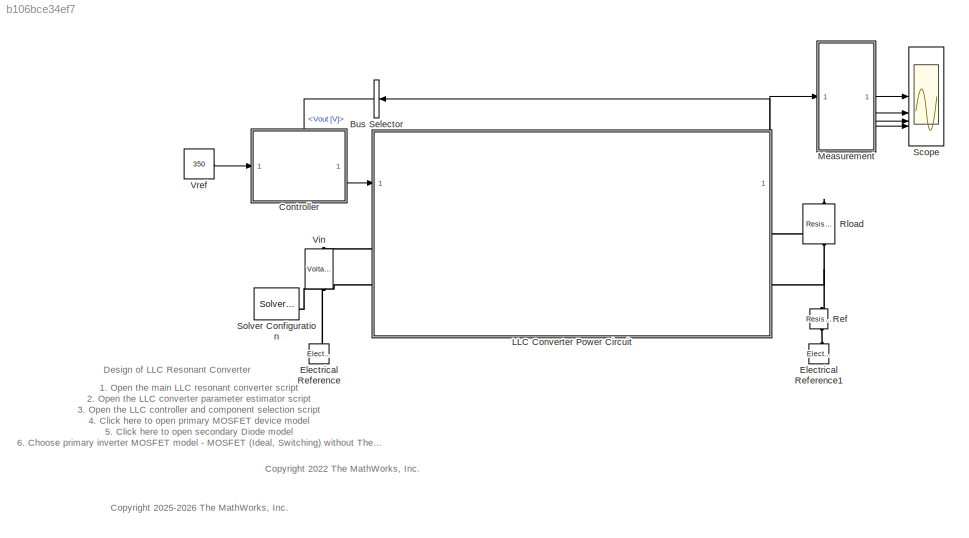
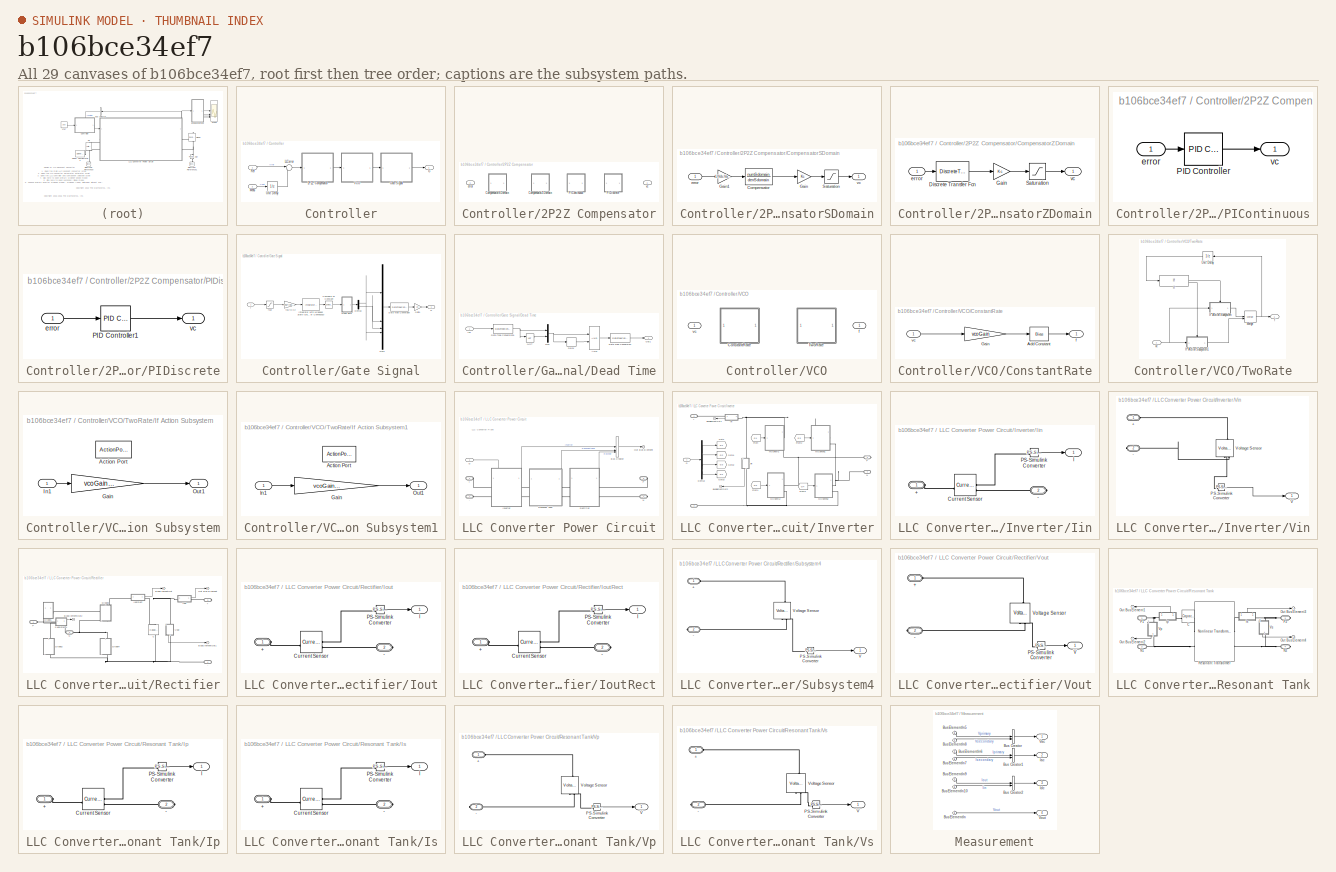
[diagram: thumbnail index - all 29 canvases of the model, root first then tree order]
MODEL slx_b106bce34ef7
KIND model
CONFIG AbsTol = 1e-3
CONFIG EnableMultiTasking = off
CONFIG FixedStep = Ts
CONFIG MaxStep = auto
CONFIG MinStep = auto
CONFIG PreLoadFcn = % Parameterize the model\n\nif ~exist('LLCDesign', 'var')\nLLCConverterDefaultInputParameters;\nend\n
CONFIG RelTol = 1e-3
CONFIG SampleTimeConstraint = Unconstrained
CONFIG SolverName = VariableStepAuto
CONFIG StartTime = 0.0
CONFIG StopTime = simulationTime
BLOCK [BusSelector] Bus Selector
  NameLocation = top
  OutputSignals = Rectifier.Vout [V]
BLOCK [SubSystem] Controller
  PortSchema = {"entries":[{"content":{"sides":[{"content":{"connectorIds":["In1"]},"type":"ConnectorPlacement.EquallySpacedRectSide","uuid":"84c754b2-b57a-4f64-aca2-bece432afc0f"},{"content":{"connectorIds":["Out1"],"side":"RIGHT"},"type":"ConnectorPlacement.EquallySpacedRectSide","uuid":"31c81acd-cffa-43b1-9c63-1fa24393f775"},{"content":{"connectorIds":["In2"],"side":"TOP"},"type":"ConnectorPlacement.EquallySp...<+245ch>
BLOCK [SubSystem] Controller/2P2Z Compensator
  LabelModeActiveChoice = SCompensator
  Variant = on
  VariantControlMode = label
BLOCK [SubSystem] Controller/2P2Z Compensator/CompensatorSDomain
  VariantControl = SCompensator
BLOCK [TransferFcn] Controller/2P2Z Compensator/CompensatorSDomain/Compensator
  Denominator = denSdomain
  Numerator = numSdomain
BLOCK [Gain] Controller/2P2Z Compensator/CompensatorSDomain/Gain
  Gain = Kc
BLOCK [Gain] Controller/2P2Z Compensator/CompensatorSDomain/Gain1
  Gain = 1/VdcValue
BLOCK [Saturate] Controller/2P2Z Compensator/CompensatorSDomain/Saturation
  LowerLimit = Fmin-1
  UpperLimit = Fmax-1
BLOCK [Inport] Controller/2P2Z Compensator/CompensatorSDomain/error
BLOCK [Outport] Controller/2P2Z Compensator/CompensatorSDomain/vc
BLOCK [SubSystem] Controller/2P2Z Compensator/CompensatorZDomain
  VariantControl = ZCompensator
BLOCK [DiscreteTransferFcn] Controller/2P2Z Compensator/CompensatorZDomain/Discrete Transfer Fcn
  CloseFcn = dspblkCoreblockFVToolHelper(gcbh,'close');
  CopyFcn = dspblkCoreblockFVToolHelper(gcbh,'copy');
  DeleteFcn = dspblkCoreblockFVToolHelper(gcbh,'close');
  Denominator = denZdomain
  InputPortMap = u0
  LoadFcn = dspblkCoreblockFVToolHelper(gcbh,'load');
  ModelCloseFcn = dspblkCoreblockFVToolHelper(gcbh,'close');
  Numerator = numZdomain
  PostSaveFcn = dspblkCoreblockFVToolHelper(gcbh,'postsave');
  PreSaveFcn = dspblkCoreblockFVToolHelper(gcbh,'presave');
BLOCK [Gain] Controller/2P2Z Compensator/CompensatorZDomain/Gain
  Gain = Kc
BLOCK [Saturate] Controller/2P2Z Compensator/CompensatorZDomain/Saturation
  LowerLimit = Fmin-1
  UpperLimit = Fmax-1
BLOCK [Inport] Controller/2P2Z Compensator/CompensatorZDomain/error
BLOCK [Outport] Controller/2P2Z Compensator/CompensatorZDomain/vc
BLOCK [SubSystem] Controller/2P2Z Compensator/PIContinuous
  VariantControl = PIContinuous
BLOCK [Reference] Controller/2P2Z Compensator/PIContinuous/PID Controller  REF=slpidlib/PID Controller
  LibrarySourceBlock = simulink/Continuous/PID Controller
  SourceBlock = slpidlib/PID Controller
  SourceType = PID 1dof
BLOCK [Inport] Controller/2P2Z Compensator/PIContinuous/error
BLOCK [Outport] Controller/2P2Z Compensator/PIContinuous/vc
BLOCK [SubSystem] Controller/2P2Z Compensator/PIDiscrete
  VariantControl = PIDiscrete
BLOCK [Reference] Controller/2P2Z Compensator/PIDiscrete/PID Controller1  REF=slpidlib/PID Controller
  LibrarySourceBlock = simulink/Continuous/PID Controller
  SourceBlock = slpidlib/PID Controller
  SourceType = PID 1dof
BLOCK [Inport] Controller/2P2Z Compensator/PIDiscrete/error
BLOCK [Outport] Controller/2P2Z Compensator/PIDiscrete/vc
BLOCK [Inport] Controller/2P2Z Compensator/error
BLOCK [Outport] Controller/2P2Z Compensator/vc
BLOCK [Outport] Controller/G
BLOCK [SubSystem] Controller/Gate Signal
BLOCK [Reference] Controller/Gate Signal/Compare To Constant  REF=simulink/Logic and Bit
Operations/Compare
To Constant
  SourceBlock = simulink/Logic and Bit\nOperations/Compare\nTo Constant
  SourceType = Compare To Constant
BLOCK [DataTypeConversion] Controller/Gate Signal/Data Type Conversion
  RndMeth = Floor
  SaturateOnIntegerOverflow = off
BLOCK [SubSystem] Controller/Gate Signal/Dead Time
BLOCK [Logic] Controller/Gate Signal/Dead Time/AND
  AllPortsSameDT = off
  IconShape = distinctive
  OutDataTypeStr = boolean
BLOCK [DataTypeConversion] Controller/Gate Signal/Dead Time/Data Type Conversion
  RndMeth = Floor
  SaturateOnIntegerOverflow = off
BLOCK [DataTypeConversion] Controller/Gate Signal/Dead Time/Data Type Conversion1
  RndMeth = Floor
  SaturateOnIntegerOverflow = off
BLOCK [Delay] Controller/Gate Signal/Dead Time/Delay
  DelayLength = 1
  InputPortMap = u0
  SampleTime = Tdead
BLOCK [Inport] Controller/Gate Signal/Dead Time/In1
BLOCK [Mux] Controller/Gate Signal/Dead Time/Mux
  DisplayOption = bar
  Inputs = 2
BLOCK [Logic] Controller/Gate Signal/Dead Time/NOT
  AllPortsSameDT = off
  IconShape = distinctive
  Operator = NOT
  OutDataTypeStr = boolean
BLOCK [Outport] Controller/Gate Signal/Dead Time/Out1
BLOCK [Demux] Controller/Gate Signal/Demux
  Outputs = 2
BLOCK [Outport] Controller/Gate Signal/G
BLOCK [Gain] Controller/Gate Signal/Gain1
  Gain = 10
BLOCK [Reference] Controller/Gate Signal/Integrator with Wrapped State (Discrete or Continuous)  REF=eeGeneralControl/Integrator with
Wrapped State
(Discrete or Continuous)
  LibrarySourceBlock = ee_sl_lib/General Control/Integrator with\nWrapped State\n(Discrete or Continuous)
  SourceBlock = eeGeneralControl/Integrator with\nWrapped State\n(Discrete or Continuous)
  SourceType = Integrator with Wrapped State (Discrete or Continuous)
BLOCK [Mux] Controller/Gate Signal/Mux1
  DisplayOption = bar
BLOCK [Inport] Controller/Gate Signal/f
BLOCK [Gain] Controller/Gate Signal/fpu to Hz
  Gain = resFreq*2*pi
BLOCK [Saturate] Controller/Gate Signal/fsat
  LowerLimit = Fmin
  UpperLimit = Fmax
BLOCK [Sum] Controller/LLCerror
  Inputs = |-+
  NameLocation = top
BLOCK [Inport] Controller/Meas
  Port = 2
BLOCK [Inport] Controller/Ref
BLOCK [UnitDelay] Controller/Unit Delay
  HasFrameUpgradeWarning = on
  SampleTime = -1
BLOCK [SubSystem] Controller/VCO
  LabelModeActiveChoice = Constant
  Variant = on
  VariantControlMode = label
BLOCK [SubSystem] Controller/VCO/ConstantRate
  VariantControl = Constant
BLOCK [Bias] Controller/VCO/ConstantRate/Add Constant
  Bias = 1
  SaturateOnIntegerOverflow = off
BLOCK [Gain] Controller/VCO/ConstantRate/Gain
  Gain = vcoGain
BLOCK [Outport] Controller/VCO/ConstantRate/f
BLOCK [Inport] Controller/VCO/ConstantRate/vc
BLOCK [SubSystem] Controller/VCO/TwoRate
  VariantControl = TwoRate
BLOCK [If] Controller/VCO/TwoRate/If
  IfExpression = u1 > 1
BLOCK [SubSystem] Controller/VCO/TwoRate/If Action Subsystem
  TreatAsAtomicUnit = on
BLOCK [ActionPort] Controller/VCO/TwoRate/If Action Subsystem/Action Port
  ActionPortLabel = if(u1 > 1)
BLOCK [Gain] Controller/VCO/TwoRate/If Action Subsystem/Gain
  Gain = vcoGainVec(2)
BLOCK [Inport] Controller/VCO/TwoRate/If Action Subsystem/In1
BLOCK [Outport] Controller/VCO/TwoRate/If Action Subsystem/Out1
BLOCK [SubSystem] Controller/VCO/TwoRate/If Action Subsystem1
  TreatAsAtomicUnit = on
BLOCK [ActionPort] Controller/VCO/TwoRate/If Action Subsystem1/Action Port
  ActionPortLabel = else
BLOCK [Gain] Controller/VCO/TwoRate/If Action Subsystem1/Gain
  Gain = vcoGainVec(1)
BLOCK [Inport] Controller/VCO/TwoRate/If Action Subsystem1/In1
BLOCK [Outport] Controller/VCO/TwoRate/If Action Subsystem1/Out1
BLOCK [Merge] Controller/VCO/TwoRate/Merge
BLOCK [UnitDelay] Controller/VCO/TwoRate/Unit Delay
  HasFrameUpgradeWarning = on
  NameLocation = top
  SampleTime = -1
BLOCK [Outport] Controller/VCO/TwoRate/f
BLOCK [Inport] Controller/VCO/TwoRate/vc
BLOCK [Outport] Controller/VCO/f
BLOCK [Inport] Controller/VCO/vc
BLOCK [Reference] Electrical Reference  REF=fl_lib/Electrical/Electrical Elements/Electrical Reference
  NameLocation = right
  SourceBlock = fl_lib/Electrical/Electrical Elements/Electrical Reference
  SourceType = Electrical Reference
BLOCK [Reference] Electrical Reference1  REF=fl_lib/Electrical/Electrical Elements/Electrical Reference
  NameLocation = right
  SourceBlock = fl_lib/Electrical/Electrical Elements/Electrical Reference
  SourceType = Electrical Reference
BLOCK [SubSystem] LLC Converter Power Circuit
  PortSchema = {"entries":[{"content":{"sides":[{"content":{"connectorIds":["In1","LConn1","LConn2"]},"type":"ConnectorPlacement.EquallySpacedRectSide","uuid":"9d7037c5-8362-4639-a590-88c7a87a4fbd"},{"content":{"connectorIds":["RConn1","RConn2"],"side":"RIGHT"},"type":"ConnectorPlacement.EquallySpacedRectSide","uuid":"942947c3-387e-46dc-803e-f2f213fbe88c"},{"content":{"connectorIds":["Out1"],"side":"TOP"},"type"...<+275ch>
  VariantControl = fullConverter
BLOCK [PMIOPort] LLC Converter Power Circuit/+
  Side = Left
BLOCK [PMIOPort] LLC Converter Power Circuit/-
  Port = 2
  Side = Left
BLOCK [BusCreator] LLC Converter Power Circuit/Bus Creator
  DisplayOption = bar
  InheritFromInputs = on
  Inputs = 3
BLOCK [Inport] LLC Converter Power Circuit/G
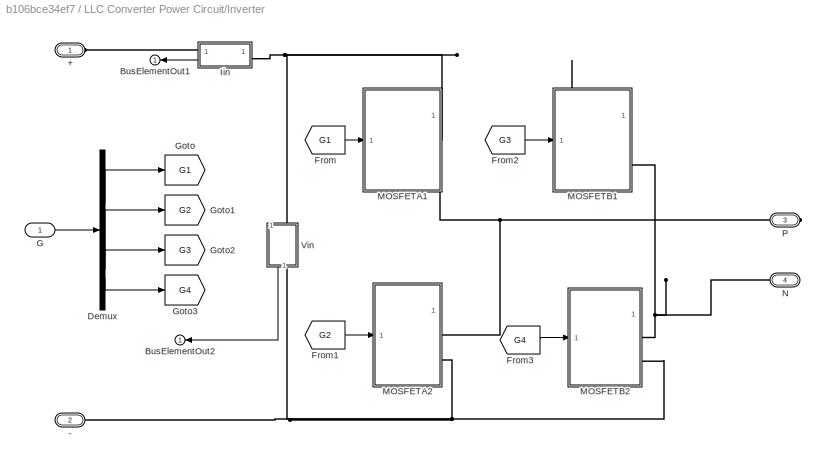
BLOCK [SubSystem] LLC Converter Power Circuit/Inverter
  PortSchema = {"entries":[{"content":{"sides":[{"content":{"connectorIds":["LConn1","LConn2"]},"type":"ConnectorPlacement.EquallySpacedRectSide","uuid":"5f98eff0-54e4-47a8-aeeb-0279cba14f26"},{"content":{"connectorIds":["RConn1","RConn2"],"side":"RIGHT"},"type":"ConnectorPlacement.EquallySpacedRectSide","uuid":"71acbbb6-1fc8-426c-b389-5d494eb18bfd"},{"content":{"connectorIds":["In1","Out1"],"side":"TOP"},"type"...<+275ch>
BLOCK [PMIOPort] LLC Converter Power Circuit/Inverter/+
  NameLocation = top
  Side = Left
BLOCK [PMIOPort] LLC Converter Power Circuit/Inverter/-
  NameLocation = top
  Port = 2
  Side = Left
BLOCK [Outport] LLC Converter Power Circuit/Inverter/BusElementOut1
  NameLocation = top
BLOCK [Outport] LLC Converter Power Circuit/Inverter/BusElementOut2
  NameLocation = top
BLOCK [Demux] LLC Converter Power Circuit/Inverter/Demux
BLOCK [From] LLC Converter Power Circuit/Inverter/From
  GotoTag = G1
BLOCK [From] LLC Converter Power Circuit/Inverter/From1
  GotoTag = G2
BLOCK [From] LLC Converter Power Circuit/Inverter/From2
  GotoTag = G3
BLOCK [From] LLC Converter Power Circuit/Inverter/From3
  GotoTag = G4
BLOCK [Inport] LLC Converter Power Circuit/Inverter/G
BLOCK [Goto] LLC Converter Power Circuit/Inverter/Goto
  GotoTag = G1
BLOCK [Goto] LLC Converter Power Circuit/Inverter/Goto1
  GotoTag = G2
BLOCK [Goto] LLC Converter Power Circuit/Inverter/Goto2
  GotoTag = G3
BLOCK [Goto] LLC Converter Power Circuit/Inverter/Goto3
  GotoTag = G4
BLOCK [SubSystem] LLC Converter Power Circuit/Inverter/Iin
  PortSchema = {"entries":[{"content":{"sides":[{"content":{"connectorIds":["LConn1","Out1"]},"type":"ConnectorPlacement.EquallySpacedRectSide","uuid":"e749c2ff-fd60-426f-a769-b61a7dfe80d2"},{"content":{"connectorIds":["RConn1"],"side":"RIGHT"},"type":"ConnectorPlacement.EquallySpacedRectSide","uuid":"f3bb02bd-f8d2-4326-b68c-6f969fa4ac22"},{"content":{"side":"TOP"},"type":"ConnectorPlacement.EquallySpacedRectSid...<+234ch>
BLOCK [PMIOPort] LLC Converter Power Circuit/Inverter/Iin/+
  Side = Left
BLOCK [PMIOPort] LLC Converter Power Circuit/Inverter/Iin/-
  Port = 2
  Side = Right
BLOCK [Reference] LLC Converter Power Circuit/Inverter/Iin/Current Sensor  REF=fl_lib/Electrical/Electrical Sensors/Current Sensor
  SourceBlock = fl_lib/Electrical/Electrical Sensors/Current Sensor
  SourceType = Current Sensor
BLOCK [Outport] LLC Converter Power Circuit/Inverter/Iin/I
BLOCK [Reference] LLC Converter Power Circuit/Inverter/Iin/PS-Simulink Converter  REF=nesl_utility/PS-Simulink
Converter
  SourceBlock = nesl_utility/PS-Simulink\nConverter
  SourceType = PS-Simulink\nConverter
BLOCK [SubSystem] LLC Converter Power Circuit/Inverter/MOSFETA1
  ReferencedSubsystem = LLCModelIdealMOSFETWithoutThermal
BLOCK [SubSystem] LLC Converter Power Circuit/Inverter/MOSFETA2
  ReferencedSubsystem = LLCModelIdealMOSFETWithoutThermal
BLOCK [SubSystem] LLC Converter Power Circuit/Inverter/MOSFETB1
  ReferencedSubsystem = LLCModelIdealMOSFETWithoutThermal
BLOCK [SubSystem] LLC Converter Power Circuit/Inverter/MOSFETB2
  ReferencedSubsystem = LLCModelIdealMOSFETWithoutThermal
BLOCK [PMIOPort] LLC Converter Power Circuit/Inverter/N
  Port = 4
  Side = Right
BLOCK [PMIOPort] LLC Converter Power Circuit/Inverter/P
  Port = 3
  Side = Right
BLOCK [SubSystem] LLC Converter Power Circuit/Inverter/Vin
  NameLocation = left
BLOCK [PMIOPort] LLC Converter Power Circuit/Inverter/Vin/+
  Side = Left
BLOCK [PMIOPort] LLC Converter Power Circuit/Inverter/Vin/-
  Port = 2
  Side = Right
BLOCK [Reference] LLC Converter Power Circuit/Inverter/Vin/PS-Simulink Converter  REF=nesl_utility/PS-Simulink
Converter
  SourceBlock = nesl_utility/PS-Simulink\nConverter
  SourceType = PS-Simulink\nConverter
BLOCK [Outport] LLC Converter Power Circuit/Inverter/Vin/V
BLOCK [Reference] LLC Converter Power Circuit/Inverter/Vin/Voltage Sensor  REF=fl_lib/Electrical/Electrical Sensors/Voltage Sensor
  NameLocation = right
  SourceBlock = fl_lib/Electrical/Electrical Sensors/Voltage Sensor
  SourceType = Voltage Sensor
BLOCK [PMIOPort] LLC Converter Power Circuit/N
  Port = 4
  Side = Right
BLOCK [Outport] LLC Converter Power Circuit/Out Bus Element
BLOCK [PMIOPort] LLC Converter Power Circuit/P
  Port = 3
  Side = Right
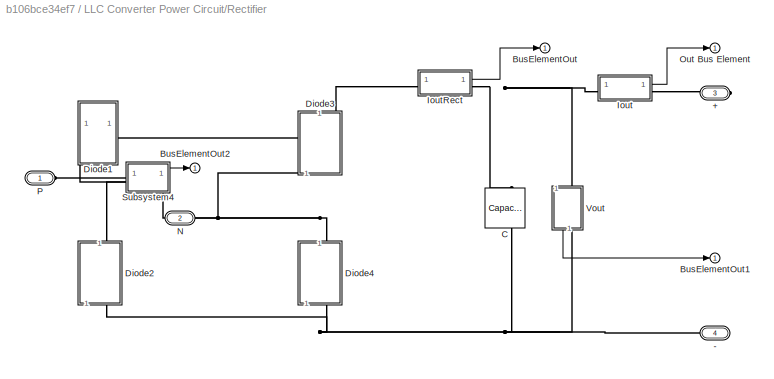
BLOCK [SubSystem] LLC Converter Power Circuit/Rectifier
  PortSchema = {"entries":[{"content":{"sides":[{"content":{"connectorIds":["LConn1","LConn2"]},"type":"ConnectorPlacement.EquallySpacedRectSide","uuid":"4786b3cc-2245-4c72-a50b-9c63e4ad3d8a"},{"content":{"connectorIds":["RConn1","RConn2"],"side":"RIGHT"},"type":"ConnectorPlacement.EquallySpacedRectSide","uuid":"250a01d0-bf95-4e01-bf69-d866bcf3b7bd"},{"content":{"connectorIds":["Out1"],"side":"TOP"},"type":"Conn...<+269ch>
BLOCK [PMIOPort] LLC Converter Power Circuit/Rectifier/+
  Port = 3
  Side = Right
BLOCK [PMIOPort] LLC Converter Power Circuit/Rectifier/-
  Port = 4
  Side = Right
BLOCK [Outport] LLC Converter Power Circuit/Rectifier/BusElementOut
BLOCK [Outport] LLC Converter Power Circuit/Rectifier/BusElementOut1
BLOCK [Outport] LLC Converter Power Circuit/Rectifier/BusElementOut2
BLOCK [Reference] LLC Converter Power Circuit/Rectifier/C  REF=fl_lib/Electrical/Electrical Elements/Capacitor
  NameLocation = left
  SourceBlock = fl_lib/Electrical/Electrical Elements/Capacitor
  SourceType = Capacitor
BLOCK [SubSystem] LLC Converter Power Circuit/Rectifier/Diode1
  NameLocation = top
  PortSchema = {"entries":[{"content":{"sides":[{"content":{},"type":"ConnectorPlacement.EquallySpacedRectSide","uuid":"8b053fdc-57c3-42d0-a795-f49711decca4"},{"content":{"side":"RIGHT"},"type":"ConnectorPlacement.EquallySpacedRectSide","uuid":"4b631d3b-8cca-4ce3-82a2-65a4f492aa8e"},{"content":{"connectorIds":["LConn1"],"side":"TOP"},"type":"ConnectorPlacement.EquallySpacedRectSide","uuid":"517b7f49-533e-4d6c-86...<+354ch>
  ReferencedSubsystem = LLCModelBasicDiode
BLOCK [SubSystem] LLC Converter Power Circuit/Rectifier/Diode2
  NameLocation = right
  ReferencedSubsystem = LLCModelBasicDiode
BLOCK [SubSystem] LLC Converter Power Circuit/Rectifier/Diode3
  NameLocation = right
  ReferencedSubsystem = LLCModelBasicDiode
BLOCK [SubSystem] LLC Converter Power Circuit/Rectifier/Diode4
  NameLocation = right
  ReferencedSubsystem = LLCModelBasicDiode
BLOCK [SubSystem] LLC Converter Power Circuit/Rectifier/Iout
BLOCK [PMIOPort] LLC Converter Power Circuit/Rectifier/Iout/+
  Side = Left
BLOCK [PMIOPort] LLC Converter Power Circuit/Rectifier/Iout/-
  Port = 2
  Side = Right
BLOCK [Reference] LLC Converter Power Circuit/Rectifier/Iout/Current Sensor  REF=fl_lib/Electrical/Electrical Sensors/Current Sensor
  SourceBlock = fl_lib/Electrical/Electrical Sensors/Current Sensor
  SourceType = Current Sensor
BLOCK [Outport] LLC Converter Power Circuit/Rectifier/Iout/I
BLOCK [Reference] LLC Converter Power Circuit/Rectifier/Iout/PS-Simulink Converter  REF=nesl_utility/PS-Simulink
Converter
  SourceBlock = nesl_utility/PS-Simulink\nConverter
  SourceType = PS-Simulink\nConverter
BLOCK [SubSystem] LLC Converter Power Circuit/Rectifier/IoutRect
BLOCK [PMIOPort] LLC Converter Power Circuit/Rectifier/IoutRect/+
  Side = Left
BLOCK [PMIOPort] LLC Converter Power Circuit/Rectifier/IoutRect/-
  Port = 2
  Side = Right
BLOCK [Reference] LLC Converter Power Circuit/Rectifier/IoutRect/Current Sensor  REF=fl_lib/Electrical/Electrical Sensors/Current Sensor
  SourceBlock = fl_lib/Electrical/Electrical Sensors/Current Sensor
  SourceType = Current Sensor
BLOCK [Outport] LLC Converter Power Circuit/Rectifier/IoutRect/I
BLOCK [Reference] LLC Converter Power Circuit/Rectifier/IoutRect/PS-Simulink Converter  REF=nesl_utility/PS-Simulink
Converter
  SourceBlock = nesl_utility/PS-Simulink\nConverter
  SourceType = PS-Simulink\nConverter
BLOCK [PMIOPort] LLC Converter Power Circuit/Rectifier/N
  NameLocation = top
  Port = 2
  Side = Left
BLOCK [Outport] LLC Converter Power Circuit/Rectifier/Out Bus Element
BLOCK [PMIOPort] LLC Converter Power Circuit/Rectifier/P
  NameLocation = top
  Side = Left
BLOCK [SubSystem] LLC Converter Power Circuit/Rectifier/Subsystem4
  PortSchema = {"entries":[{"content":{"sides":[{"content":{"connectorIds":["LConn1"]},"type":"ConnectorPlacement.EquallySpacedRectSide","uuid":"e749c2ff-fd60-426f-a769-b61a7dfe80d2"},{"content":{"connectorIds":["RConn1","Out1"],"side":"RIGHT"},"type":"ConnectorPlacement.EquallySpacedRectSide","uuid":"f3bb02bd-f8d2-4326-b68c-6f969fa4ac22"},{"content":{"side":"TOP"},"type":"ConnectorPlacement.EquallySpacedRectSid...<+234ch>  <repeated x3 — deduplicated; at blocks: Subsystem4, Vout, Is>
BLOCK [PMIOPort] LLC Converter Power Circuit/Rectifier/Subsystem4/+
  Side = Left
BLOCK [PMIOPort] LLC Converter Power Circuit/Rectifier/Subsystem4/-
  Port = 2
  Side = Right
BLOCK [Reference] LLC Converter Power Circuit/Rectifier/Subsystem4/PS-Simulink Converter  REF=nesl_utility/PS-Simulink
Converter
  SourceBlock = nesl_utility/PS-Simulink\nConverter
  SourceType = PS-Simulink\nConverter
BLOCK [Outport] LLC Converter Power Circuit/Rectifier/Subsystem4/V
BLOCK [Reference] LLC Converter Power Circuit/Rectifier/Subsystem4/Voltage Sensor  REF=fl_lib/Electrical/Electrical Sensors/Voltage Sensor
  NameLocation = right
  SourceBlock = fl_lib/Electrical/Electrical Sensors/Voltage Sensor
  SourceType = Voltage Sensor
BLOCK [SubSystem] LLC Converter Power Circuit/Rectifier/Vout
  NameLocation = left
BLOCK [PMIOPort] LLC Converter Power Circuit/Rectifier/Vout/+
  Side = Left
BLOCK [PMIOPort] LLC Converter Power Circuit/Rectifier/Vout/-
  Port = 2
  Side = Right
BLOCK [Reference] LLC Converter Power Circuit/Rectifier/Vout/PS-Simulink Converter  REF=nesl_utility/PS-Simulink
Converter
  SourceBlock = nesl_utility/PS-Simulink\nConverter
  SourceType = PS-Simulink\nConverter
BLOCK [Outport] LLC Converter Power Circuit/Rectifier/Vout/V
BLOCK [Reference] LLC Converter Power Circuit/Rectifier/Vout/Voltage Sensor  REF=fl_lib/Electrical/Electrical Sensors/Voltage Sensor
  NameLocation = right
  SourceBlock = fl_lib/Electrical/Electrical Sensors/Voltage Sensor
  SourceType = Voltage Sensor
BLOCK [SubSystem] LLC Converter Power Circuit/Resonant Tank
  PortSchema = {"entries":[{"content":{"sides":[{"content":{"connectorIds":["LConn1","LConn2"]},"type":"ConnectorPlacement.EquallySpacedRectSide","uuid":"d505f362-3b8e-4dee-9b5b-731d75550efb"},{"content":{"connectorIds":["RConn1","RConn2"],"side":"RIGHT"},"type":"ConnectorPlacement.EquallySpacedRectSide","uuid":"66ab4b84-9b7a-404b-b3f6-3ac1c371ea42"},{"content":{"connectorIds":["Out1"],"side":"TOP"},"type":"Conn...<+269ch>
BLOCK [Reference] LLC Converter Power Circuit/Resonant Tank/C  REF=fl_lib/Electrical/Electrical Elements/Capacitor
  SourceBlock = fl_lib/Electrical/Electrical Elements/Capacitor
  SourceType = Capacitor
BLOCK [SubSystem] LLC Converter Power Circuit/Resonant Tank/Ip
  PortSchema = {"entries":[{"content":{"sides":[{"content":{"connectorIds":["Out1","LConn1"]},"type":"ConnectorPlacement.EquallySpacedRectSide","uuid":"e749c2ff-fd60-426f-a769-b61a7dfe80d2"},{"content":{"connectorIds":["RConn1"],"side":"RIGHT"},"type":"ConnectorPlacement.EquallySpacedRectSide","uuid":"f3bb02bd-f8d2-4326-b68c-6f969fa4ac22"},{"content":{"side":"TOP"},"type":"ConnectorPlacement.EquallySpacedRectSid...<+234ch>
BLOCK [PMIOPort] LLC Converter Power Circuit/Resonant Tank/Ip/+
  Side = Left
BLOCK [PMIOPort] LLC Converter Power Circuit/Resonant Tank/Ip/-
  Port = 2
  Side = Right
BLOCK [Reference] LLC Converter Power Circuit/Resonant Tank/Ip/Current Sensor  REF=fl_lib/Electrical/Electrical Sensors/Current Sensor
  SourceBlock = fl_lib/Electrical/Electrical Sensors/Current Sensor
  SourceType = Current Sensor
BLOCK [Outport] LLC Converter Power Circuit/Resonant Tank/Ip/I
BLOCK [Reference] LLC Converter Power Circuit/Resonant Tank/Ip/PS-Simulink Converter  REF=nesl_utility/PS-Simulink
Converter
  SourceBlock = nesl_utility/PS-Simulink\nConverter
  SourceType = PS-Simulink\nConverter
BLOCK [SubSystem] LLC Converter Power Circuit/Resonant Tank/Is
BLOCK [PMIOPort] LLC Converter Power Circuit/Resonant Tank/Is/+
  Side = Left
BLOCK [PMIOPort] LLC Converter Power Circuit/Resonant Tank/Is/-
  Port = 2
  Side = Right
BLOCK [Reference] LLC Converter Power Circuit/Resonant Tank/Is/Current Sensor  REF=fl_lib/Electrical/Electrical Sensors/Current Sensor
  SourceBlock = fl_lib/Electrical/Electrical Sensors/Current Sensor
  SourceType = Current Sensor
BLOCK [Outport] LLC Converter Power Circuit/Resonant Tank/Is/I
BLOCK [Reference] LLC Converter Power Circuit/Resonant Tank/Is/PS-Simulink Converter  REF=nesl_utility/PS-Simulink
Converter
  SourceBlock = nesl_utility/PS-Simulink\nConverter
  SourceType = PS-Simulink\nConverter
BLOCK [PMIOPort] LLC Converter Power Circuit/Resonant Tank/N1
  Port = 2
  Side = Left
BLOCK [PMIOPort] LLC Converter Power Circuit/Resonant Tank/N2
  Port = 4
  Side = Right
BLOCK [Outport] LLC Converter Power Circuit/Resonant Tank/Out Bus Element1
  NameLocation = top
BLOCK [Outport] LLC Converter Power Circuit/Resonant Tank/Out Bus Element2
  NameLocation = top
BLOCK [Outport] LLC Converter Power Circuit/Resonant Tank/Out Bus Element3
BLOCK [Outport] LLC Converter Power Circuit/Resonant Tank/Out Bus Element4
BLOCK [PMIOPort] LLC Converter Power Circuit/Resonant Tank/P1
  Side = Left
BLOCK [PMIOPort] LLC Converter Power Circuit/Resonant Tank/P2
  Port = 3
  Side = Right
BLOCK [Reference] LLC Converter Power Circuit/Resonant Tank/Resonant Transformer  REF=ee_lib/Passive/Transformers/Nonlinear
Transformer
  SourceBlock = ee_lib/Passive/Transformers/Nonlinear\nTransformer
  SourceType = Nonlinear\nTransformer
BLOCK [SubSystem] LLC Converter Power Circuit/Resonant Tank/Vp
  NameLocation = left
BLOCK [PMIOPort] LLC Converter Power Circuit/Resonant Tank/Vp/+
  Side = Left
BLOCK [PMIOPort] LLC Converter Power Circuit/Resonant Tank/Vp/-
  Port = 2
  Side = Right
BLOCK [Reference] LLC Converter Power Circuit/Resonant Tank/Vp/PS-Simulink Converter  REF=nesl_utility/PS-Simulink
Converter
  SourceBlock = nesl_utility/PS-Simulink\nConverter
  SourceType = PS-Simulink\nConverter
BLOCK [Outport] LLC Converter Power Circuit/Resonant Tank/Vp/V
BLOCK [Reference] LLC Converter Power Circuit/Resonant Tank/Vp/Voltage Sensor  REF=fl_lib/Electrical/Electrical Sensors/Voltage Sensor
  NameLocation = right
  SourceBlock = fl_lib/Electrical/Electrical Sensors/Voltage Sensor
  SourceType = Voltage Sensor
BLOCK [SubSystem] LLC Converter Power Circuit/Resonant Tank/Vs
  NameLocation = right
BLOCK [PMIOPort] LLC Converter Power Circuit/Resonant Tank/Vs/+
  Side = Left
BLOCK [PMIOPort] LLC Converter Power Circuit/Resonant Tank/Vs/-
  Port = 2
  Side = Right
BLOCK [Reference] LLC Converter Power Circuit/Resonant Tank/Vs/PS-Simulink Converter  REF=nesl_utility/PS-Simulink
Converter
  SourceBlock = nesl_utility/PS-Simulink\nConverter
  SourceType = PS-Simulink\nConverter
BLOCK [Outport] LLC Converter Power Circuit/Resonant Tank/Vs/V
BLOCK [Reference] LLC Converter Power Circuit/Resonant Tank/Vs/Voltage Sensor  REF=fl_lib/Electrical/Electrical Sensors/Voltage Sensor
  NameLocation = right
  SourceBlock = fl_lib/Electrical/Electrical Sensors/Voltage Sensor
  SourceType = Voltage Sensor
BLOCK [SubSystem] Measurement
BLOCK [BusCreator] Measurement/Bus Creator
  DisplayOption = bar
  InheritFromInputs = on
  Inputs = 2
BLOCK [BusCreator] Measurement/Bus Creator1
  DisplayOption = bar
  InheritFromInputs = on
  Inputs = 2
BLOCK [BusCreator] Measurement/Bus Creator2
  DisplayOption = bar
  InheritFromInputs = on
  Inputs = 2
BLOCK [Inport] Measurement/BusElementIn
BLOCK [Inport] Measurement/BusElementIn10
BLOCK [Inport] Measurement/BusElementIn5
BLOCK [Inport] Measurement/BusElementIn6
BLOCK [Inport] Measurement/BusElementIn7
BLOCK [Inport] Measurement/BusElementIn8
BLOCK [Inport] Measurement/BusElementIn9
BLOCK [Outport] Measurement/Iac
  Port = 2
BLOCK [Outport] Measurement/Idc
  Port = 3
BLOCK [Outport] Measurement/Vac
BLOCK [Outport] Measurement/Vout
  Port = 4
BLOCK [Reference] Ref  REF=fl_lib/Electrical/Electrical Elements/Resistor
  NameLocation = right
  SourceBlock = fl_lib/Electrical/Electrical Elements/Resistor
  SourceType = Resistor
BLOCK [Reference] Rload  REF=fl_lib/Electrical/Electrical Elements/Resistor
  NameLocation = right
  SourceBlock = fl_lib/Electrical/Electrical Elements/Resistor
  SourceType = Resistor
BLOCK [Scope] Scope
  ActiveDisplayYMaximum = 476.50662753119536
  ActiveDisplayYMinimum = -476.50642638958004
  DataLoggingVariableName = ScopeData1
  Floating = off
  GraphicalSettings = {"Style":{"BackgroundColor":[0.12941176470588237,0.12941176470588237,0.12941176470588237],"AxesColor":[0.07058823529411765,0.07058823529411765,0.07058823529411765],"LabelsColor":[0.8509803921568627,0.8509803921568627,0.8509803921568627],"PreserveColors":false,"Visible":[true,true,true,true,true,true,true],"LineStyle":["-","-","-","-","-","-","-"],"LineWidth":[1.5,1.5,1.5,1.5,1.5,1.5,1.5],"BarWidth...<+3886ch>
  LayoutDimensionsString = [2 2]
  MultipleDisplayCache = [{"MaxYLimMag":476.50662753119536,"MaxYLimReal":476.50662753119536,"MinYLimMag":0,"MinYLimReal":-476.50642638958004,"PlotAsMagnitudePhase":false,"ShowGrid":true,"ShowLegend":true,"Title":"Resonant Tank Voltages","YLabel":""},{"MaxYLimMag":60.551065160895185,"MaxYLimReal":60.551065160895185,"MinYLimMag":0,"MinYLimReal":-48.3394964532292,"PlotAsMagnitudePhase":false,"ShowGrid":true,"ShowLegend":true...<+508ch>
  NumInputPorts = 4
  ScopeFrameLocation = window
  ShowLegend = on
  Title = Resonant Tank Voltages
  WasSavedAsWebScope = on
  WindowPosition = [319.000000,192.000000,746.000000,571.000000,]
BLOCK [Reference] Solver Configuration  REF=nesl_utility/Solver
Configuration
  SourceBlock = nesl_utility/Solver\nConfiguration
  SourceType = Solver\nConfiguration
BLOCK [Reference] Vin  REF=ee_lib/Sources/Voltage Source
  NameLocation = right
  SourceBlock = ee_lib/Sources/Voltage Source
  SourceType = Voltage Source
BLOCK [Constant] Vref
  Value = 350
ANNOTATION (root): 1. Open the main LLC resonant converter script 2. Open the LLC converter parameter estimator script 3. Open the LLC controller and component selection script 4. Click here to open primary MOSFET device model 5. Click here to open secondary Diode model 6. Choose primary inverter MOSFET model - MOSFET (Ideal, Switching) without Thermal , MOSFET (Ideal, Switching) with Thermal 7. Choose secondary dio...<+102ch>
ANNOTATION (root): Design of LLC Resonant Converter
ANNOTATION (root): <copyright redacted>
ANNOTATION (root): <copyright redacted>
ANNOTATION LLC Converter Power Circuit: LLC Converter Plant
LINE Bus Selector:1 -> Controller:2
LINE Controller/2P2Z Compensator/CompensatorSDomain/Compensator:1 -> Controller/2P2Z Compensator/CompensatorSDomain/Gain:1
LINE Controller/2P2Z Compensator/CompensatorSDomain/Gain1:1 -> Controller/2P2Z Compensator/CompensatorSDomain/Compensator:1
LINE Controller/2P2Z Compensator/CompensatorSDomain/Gain:1 -> Controller/2P2Z Compensator/CompensatorSDomain/Saturation:1
LINE Controller/2P2Z Compensator/CompensatorSDomain/Saturation:1 -> Controller/2P2Z Compensator/CompensatorSDomain/vc:1
LINE Controller/2P2Z Compensator/CompensatorSDomain/error:1 -> Controller/2P2Z Compensator/CompensatorSDomain/Gain1:1
LINE Controller/2P2Z Compensator/CompensatorZDomain/Discrete Transfer Fcn:1 -> Controller/2P2Z Compensator/CompensatorZDomain/Gain:1
LINE Controller/2P2Z Compensator/CompensatorZDomain/Gain:1 -> Controller/2P2Z Compensator/CompensatorZDomain/Saturation:1
LINE Controller/2P2Z Compensator/CompensatorZDomain/Saturation:1 -> Controller/2P2Z Compensator/CompensatorZDomain/vc:1
LINE Controller/2P2Z Compensator/CompensatorZDomain/error:1 -> Controller/2P2Z Compensator/CompensatorZDomain/Discrete Transfer Fcn:1
LINE Controller/2P2Z Compensator/PIContinuous/PID Controller:1 -> Controller/2P2Z Compensator/PIContinuous/vc:1
LINE Controller/2P2Z Compensator/PIContinuous/error:1 -> Controller/2P2Z Compensator/PIContinuous/PID Controller:1
LINE Controller/2P2Z Compensator/PIDiscrete/PID Controller1:1 -> Controller/2P2Z Compensator/PIDiscrete/vc:1
LINE Controller/2P2Z Compensator/PIDiscrete/error:1 -> Controller/2P2Z Compensator/PIDiscrete/PID Controller1:1
LINE Controller/2P2Z Compensator:1 -> Controller/VCO:1
LINE Controller/Gate Signal/Compare To Constant:1 -> Controller/Gate Signal/Dead Time:1
LINE Controller/Gate Signal/Data Type Conversion:1 -> Controller/Gate Signal/Gain1:1
LINE Controller/Gate Signal/Dead Time/AND:1 -> Controller/Gate Signal/Dead Time/Data Type Conversion:1
NET Controller/Gate Signal/Dead Time/Data Type Conversion1:1 -> Controller/Gate Signal/Dead Time/Mux:1, Controller/Gate Signal/Dead Time/NOT:1
LINE Controller/Gate Signal/Dead Time/Data Type Conversion:1 -> Controller/Gate Signal/Dead Time/Out1:1
LINE Controller/Gate Signal/Dead Time/Delay:1 -> Controller/Gate Signal/Dead Time/AND:2
LINE Controller/Gate Signal/Dead Time/In1:1 -> Controller/Gate Signal/Dead Time/Data Type Conversion1:1
NET Controller/Gate Signal/Dead Time/Mux:1 -> Controller/Gate Signal/Dead Time/AND:1, Controller/Gate Signal/Dead Time/Delay:1
LINE Controller/Gate Signal/Dead Time/NOT:1 -> Controller/Gate Signal/Dead Time/Mux:2
LINE Controller/Gate Signal/Dead Time:1 -> Controller/Gate Signal/Demux:1
NET Controller/Gate Signal/Demux:1 -> Controller/Gate Signal/Mux1:1, Controller/Gate Signal/Mux1:4
NET Controller/Gate Signal/Demux:2 -> Controller/Gate Signal/Mux1:2, Controller/Gate Signal/Mux1:3
LINE Controller/Gate Signal/Gain1:1 -> Controller/Gate Signal/G:1
LINE Controller/Gate Signal/Integrator with Wrapped State (Discrete or Continuous):1 -> Controller/Gate Signal/Compare To Constant:1
LINE Controller/Gate Signal/Mux1:1 -> Controller/Gate Signal/Data Type Conversion:1
LINE Controller/Gate Signal/f:1 -> Controller/Gate Signal/fsat:1
LINE Controller/Gate Signal/fpu to Hz:1 -> Controller/Gate Signal/Integrator with Wrapped State (Discrete or Continuous):1
LINE Controller/Gate Signal/fsat:1 -> Controller/Gate Signal/fpu to Hz:1
LINE Controller/Gate Signal:1 -> Controller/G:1
LINE Controller/LLCerror:1 -> Controller/2P2Z Compensator:1
LINE Controller/Meas:1 -> Controller/Unit Delay:1
LINE Controller/Ref:1 -> Controller/LLCerror:1
LINE Controller/Unit Delay:1 -> Controller/LLCerror:2
LINE Controller/VCO/ConstantRate/Add Constant:1 -> Controller/VCO/ConstantRate/f:1
LINE Controller/VCO/ConstantRate/Gain:1 -> Controller/VCO/ConstantRate/Add Constant:1
LINE Controller/VCO/ConstantRate/vc:1 -> Controller/VCO/ConstantRate/Gain:1
LINE Controller/VCO/TwoRate/If Action Subsystem/Gain:1 -> Controller/VCO/TwoRate/If Action Subsystem/Out1:1
LINE Controller/VCO/TwoRate/If Action Subsystem/In1:1 -> Controller/VCO/TwoRate/If Action Subsystem/Gain:1
LINE Controller/VCO/TwoRate/If Action Subsystem1/Gain:1 -> Controller/VCO/TwoRate/If Action Subsystem1/Out1:1
LINE Controller/VCO/TwoRate/If Action Subsystem1/In1:1 -> Controller/VCO/TwoRate/If Action Subsystem1/Gain:1
LINE Controller/VCO/TwoRate/If Action Subsystem1:1 -> Controller/VCO/TwoRate/Merge:2
LINE Controller/VCO/TwoRate/If Action Subsystem:1 -> Controller/VCO/TwoRate/Merge:1
LINE Controller/VCO/TwoRate/If:1 -> Controller/VCO/TwoRate/If Action Subsystem:ifaction
LINE Controller/VCO/TwoRate/If:2 -> Controller/VCO/TwoRate/If Action Subsystem1:ifaction
NET Controller/VCO/TwoRate/Merge:1 -> Controller/VCO/TwoRate/Unit Delay:1, Controller/VCO/TwoRate/f:1
LINE Controller/VCO/TwoRate/Unit Delay:1 -> Controller/VCO/TwoRate/If:1
NET Controller/VCO/TwoRate/vc:1 -> Controller/VCO/TwoRate/If Action Subsystem1:1, Controller/VCO/TwoRate/If Action Subsystem:1
LINE Controller/VCO:1 -> Controller/Gate Signal:1
LINE Controller:1 -> LLC Converter Power Circuit:1
LINE LLC Converter Power Circuit/Bus Creator:1 -> LLC Converter Power Circuit/Out Bus Element:1
LINE LLC Converter Power Circuit/G:1 -> LLC Converter Power Circuit/Inverter:1
LINE LLC Converter Power Circuit/Inverter/Demux:1 -> LLC Converter Power Circuit/Inverter/Goto:1
LINE LLC Converter Power Circuit/Inverter/Demux:2 -> LLC Converter Power Circuit/Inverter/Goto1:1
LINE LLC Converter Power Circuit/Inverter/Demux:3 -> LLC Converter Power Circuit/Inverter/Goto2:1
LINE LLC Converter Power Circuit/Inverter/Demux:4 -> LLC Converter Power Circuit/Inverter/Goto3:1
LINE LLC Converter Power Circuit/Inverter/From1:1 -> LLC Converter Power Circuit/Inverter/MOSFETA2:1
LINE LLC Converter Power Circuit/Inverter/From2:1 -> LLC Converter Power Circuit/Inverter/MOSFETB1:1
LINE LLC Converter Power Circuit/Inverter/From3:1 -> LLC Converter Power Circuit/Inverter/MOSFETB2:1
LINE LLC Converter Power Circuit/Inverter/From:1 -> LLC Converter Power Circuit/Inverter/MOSFETA1:1
LINE LLC Converter Power Circuit/Inverter/G:1 -> LLC Converter Power Circuit/Inverter/Demux:1
LINE LLC Converter Power Circuit/Inverter/Iin/PS-Simulink Converter:1 -> LLC Converter Power Circuit/Inverter/Iin/I:1
LINE LLC Converter Power Circuit/Inverter/Iin:1 -> LLC Converter Power Circuit/Inverter/BusElementOut1:1
LINE LLC Converter Power Circuit/Inverter/Vin/PS-Simulink Converter:1 -> LLC Converter Power Circuit/Inverter/Vin/V:1
LINE LLC Converter Power Circuit/Inverter/Vin:1 -> LLC Converter Power Circuit/Inverter/BusElementOut2:1
LINE LLC Converter Power Circuit/Inverter:1 -> LLC Converter Power Circuit/Bus Creator:1
LINE LLC Converter Power Circuit/Rectifier/Iout/PS-Simulink Converter:1 -> LLC Converter Power Circuit/Rectifier/Iout/I:1
LINE LLC Converter Power Circuit/Rectifier/Iout:1 -> LLC Converter Power Circuit/Rectifier/Out Bus Element:1
LINE LLC Converter Power Circuit/Rectifier/IoutRect/PS-Simulink Converter:1 -> LLC Converter Power Circuit/Rectifier/IoutRect/I:1
LINE LLC Converter Power Circuit/Rectifier/IoutRect:1 -> LLC Converter Power Circuit/Rectifier/BusElementOut:1
LINE LLC Converter Power Circuit/Rectifier/Subsystem4/PS-Simulink Converter:1 -> LLC Converter Power Circuit/Rectifier/Subsystem4/V:1
LINE LLC Converter Power Circuit/Rectifier/Subsystem4:1 -> LLC Converter Power Circuit/Rectifier/BusElementOut2:1
LINE LLC Converter Power Circuit/Rectifier/Vout/PS-Simulink Converter:1 -> LLC Converter Power Circuit/Rectifier/Vout/V:1
LINE LLC Converter Power Circuit/Rectifier/Vout:1 -> LLC Converter Power Circuit/Rectifier/BusElementOut1:1
LINE LLC Converter Power Circuit/Rectifier:1 -> LLC Converter Power Circuit/Bus Creator:3
LINE LLC Converter Power Circuit/Resonant Tank/Ip/PS-Simulink Converter:1 -> LLC Converter Power Circuit/Resonant Tank/Ip/I:1
LINE LLC Converter Power Circuit/Resonant Tank/Ip:1 -> LLC Converter Power Circuit/Resonant Tank/Out Bus Element1:1
LINE LLC Converter Power Circuit/Resonant Tank/Is/PS-Simulink Converter:1 -> LLC Converter Power Circuit/Resonant Tank/Is/I:1
LINE LLC Converter Power Circuit/Resonant Tank/Is:1 -> LLC Converter Power Circuit/Resonant Tank/Out Bus Element3:1
LINE LLC Converter Power Circuit/Resonant Tank/Vp/PS-Simulink Converter:1 -> LLC Converter Power Circuit/Resonant Tank/Vp/V:1
LINE LLC Converter Power Circuit/Resonant Tank/Vp:1 -> LLC Converter Power Circuit/Resonant Tank/Out Bus Element2:1
LINE LLC Converter Power Circuit/Resonant Tank/Vs/PS-Simulink Converter:1 -> LLC Converter Power Circuit/Resonant Tank/Vs/V:1
LINE LLC Converter Power Circuit/Resonant Tank/Vs:1 -> LLC Converter Power Circuit/Resonant Tank/Out Bus Element4:1
LINE LLC Converter Power Circuit/Resonant Tank:1 -> LLC Converter Power Circuit/Bus Creator:2
NET LLC Converter Power Circuit:1 -> Bus Selector:1, Measurement:1
LINE Measurement/Bus Creator1:1 -> Measurement/Iac:1
LINE Measurement/Bus Creator2:1 -> Measurement/Idc:1
LINE Measurement/Bus Creator:1 -> Measurement/Vac:1
LINE Measurement/BusElementIn10:1 -> Measurement/Bus Creator2:2
LINE Measurement/BusElementIn5:1 -> Measurement/Bus Creator:1
LINE Measurement/BusElementIn6:1 -> Measurement/Bus Creator1:1
LINE Measurement/BusElementIn7:1 -> Measurement/Bus Creator1:2
LINE Measurement/BusElementIn8:1 -> Measurement/Bus Creator:2
LINE Measurement/BusElementIn9:1 -> Measurement/Bus Creator2:1
LINE Measurement/BusElementIn:1 -> Measurement/Vout:1
LINE Measurement:1 -> Scope:1
LINE Measurement:2 -> Scope:2
LINE Measurement:3 -> Scope:3
LINE Measurement:4 -> Scope:4
LINE Vref:1 -> Controller:1
PLINE Electrical Reference1:LConn1 -- Ref:RConn1
PNET net1: Electrical Reference:LConn1 -- LLC Converter Power Circuit:LConn2 -- Solver Configuration:RConn1 -- Vin:RConn1
PLINE LLC Converter Power Circuit/+:RConn1 -- LLC Converter Power Circuit/Inverter:LConn1
PLINE LLC Converter Power Circuit/-:RConn1 -- LLC Converter Power Circuit/Inverter:LConn2
PLINE LLC Converter Power Circuit/Inverter/+:RConn1 -- LLC Converter Power Circuit/Inverter/Iin:LConn1
PNET net2: LLC Converter Power Circuit/Inverter/-:RConn1 -- LLC Converter Power Circuit/Inverter/MOSFETA2:RConn2 -- LLC Converter Power Circuit/Inverter/MOSFETB2:RConn2 -- LLC Converter Power Circuit/Inverter/Vin:RConn1
PLINE LLC Converter Power Circuit/Inverter/Iin/+:RConn1 -- LLC Converter Power Circuit/Inverter/Iin/Current Sensor:LConn1
PLINE LLC Converter Power Circuit/Inverter/Iin/-:RConn1 -- LLC Converter Power Circuit/Inverter/Iin/Current Sensor:RConn2
PLINE LLC Converter Power Circuit/Inverter/Iin/Current Sensor:RConn1 -- LLC Converter Power Circuit/Inverter/Iin/PS-Simulink Converter:LConn1
PNET net3: LLC Converter Power Circuit/Inverter/Iin:RConn1 -- LLC Converter Power Circuit/Inverter/MOSFETA1:RConn1 -- LLC Converter Power Circuit/Inverter/MOSFETB1:RConn1 -- LLC Converter Power Circuit/Inverter/Vin:LConn1
PNET net4: LLC Converter Power Circuit/Inverter/MOSFETA1:RConn2 -- LLC Converter Power Circuit/Inverter/MOSFETA2:RConn1 -- LLC Converter Power Circuit/Inverter/P:RConn1
PNET net5: LLC Converter Power Circuit/Inverter/MOSFETB1:RConn2 -- LLC Converter Power Circuit/Inverter/MOSFETB2:RConn1 -- LLC Converter Power Circuit/Inverter/N:RConn1
PLINE LLC Converter Power Circuit/Inverter/Vin/+:RConn1 -- LLC Converter Power Circuit/Inverter/Vin/Voltage Sensor:LConn1
PLINE LLC Converter Power Circuit/Inverter/Vin/-:RConn1 -- LLC Converter Power Circuit/Inverter/Vin/Voltage Sensor:RConn2
PLINE LLC Converter Power Circuit/Inverter/Vin/PS-Simulink Converter:LConn1 -- LLC Converter Power Circuit/Inverter/Vin/Voltage Sensor:RConn1
PLINE LLC Converter Power Circuit/Inverter:RConn1 -- LLC Converter Power Circuit/Resonant Tank:LConn1
PLINE LLC Converter Power Circuit/Inverter:RConn2 -- LLC Converter Power Circuit/Resonant Tank:LConn2
PLINE LLC Converter Power Circuit/N:RConn1 -- LLC Converter Power Circuit/Rectifier:RConn2
PLINE LLC Converter Power Circuit/P:RConn1 -- LLC Converter Power Circuit/Rectifier:RConn1
PLINE LLC Converter Power Circuit/Rectifier/+:RConn1 -- LLC Converter Power Circuit/Rectifier/Iout:RConn1
PNET net6: LLC Converter Power Circuit/Rectifier/-:RConn1 -- LLC Converter Power Circuit/Rectifier/C:RConn1 -- LLC Converter Power Circuit/Rectifier/Diode2:LConn1 -- LLC Converter Power Circuit/Rectifier/Diode4:LConn1 -- LLC Converter Power Circuit/Rectifier/Vout:RConn1
PNET net7: LLC Converter Power Circuit/Rectifier/C:LConn1 -- LLC Converter Power Circuit/Rectifier/Iout:LConn1 -- LLC Converter Power Circuit/Rectifier/IoutRect:RConn1 -- LLC Converter Power Circuit/Rectifier/Vout:LConn1
PNET net8: LLC Converter Power Circuit/Rectifier/Diode1:LConn1 -- LLC Converter Power Circuit/Rectifier/Diode2:RConn1 -- LLC Converter Power Circuit/Rectifier/P:RConn1 -- LLC Converter Power Circuit/Rectifier/Subsystem4:LConn1
PNET net9: LLC Converter Power Circuit/Rectifier/Diode1:RConn1 -- LLC Converter Power Circuit/Rectifier/Diode3:RConn1 -- LLC Converter Power Circuit/Rectifier/IoutRect:LConn1
PNET net10: LLC Converter Power Circuit/Rectifier/Diode3:LConn1 -- LLC Converter Power Circuit/Rectifier/Diode4:RConn1 -- LLC Converter Power Circuit/Rectifier/N:RConn1 -- LLC Converter Power Circuit/Rectifier/Subsystem4:RConn1
PLINE LLC Converter Power Circuit/Rectifier/Iout/+:RConn1 -- LLC Converter Power Circuit/Rectifier/Iout/Current Sensor:LConn1
PLINE LLC Converter Power Circuit/Rectifier/Iout/-:RConn1 -- LLC Converter Power Circuit/Rectifier/Iout/Current Sensor:RConn2
PLINE LLC Converter Power Circuit/Rectifier/Iout/Current Sensor:RConn1 -- LLC Converter Power Circuit/Rectifier/Iout/PS-Simulink Converter:LConn1
PLINE LLC Converter Power Circuit/Rectifier/IoutRect/+:RConn1 -- LLC Converter Power Circuit/Rectifier/IoutRect/Current Sensor:LConn1
PLINE LLC Converter Power Circuit/Rectifier/IoutRect/-:RConn1 -- LLC Converter Power Circuit/Rectifier/IoutRect/Current Sensor:RConn2
PLINE LLC Converter Power Circuit/Rectifier/IoutRect/Current Sensor:RConn1 -- LLC Converter Power Circuit/Rectifier/IoutRect/PS-Simulink Converter:LConn1
PLINE LLC Converter Power Circuit/Rectifier/Subsystem4/+:RConn1 -- LLC Converter Power Circuit/Rectifier/Subsystem4/Voltage Sensor:LConn1
PLINE LLC Converter Power Circuit/Rectifier/Subsystem4/-:RConn1 -- LLC Converter Power Circuit/Rectifier/Subsystem4/Voltage Sensor:RConn2
PLINE LLC Converter Power Circuit/Rectifier/Subsystem4/PS-Simulink Converter:LConn1 -- LLC Converter Power Circuit/Rectifier/Subsystem4/Voltage Sensor:RConn1
PLINE LLC Converter Power Circuit/Rectifier/Vout/+:RConn1 -- LLC Converter Power Circuit/Rectifier/Vout/Voltage Sensor:LConn1
PLINE LLC Converter Power Circuit/Rectifier/Vout/-:RConn1 -- LLC Converter Power Circuit/Rectifier/Vout/Voltage Sensor:RConn2
PLINE LLC Converter Power Circuit/Rectifier/Vout/PS-Simulink Converter:LConn1 -- LLC Converter Power Circuit/Rectifier/Vout/Voltage Sensor:RConn1
PLINE LLC Converter Power Circuit/Rectifier:LConn1 -- LLC Converter Power Circuit/Resonant Tank:RConn1
PLINE LLC Converter Power Circuit/Rectifier:LConn2 -- LLC Converter Power Circuit/Resonant Tank:RConn2
PLINE LLC Converter Power Circuit/Resonant Tank/C:LConn1 -- LLC Converter Power Circuit/Resonant Tank/Ip:RConn1
PLINE LLC Converter Power Circuit/Resonant Tank/C:RConn1 -- LLC Converter Power Circuit/Resonant Tank/Resonant Transformer:LConn1
PLINE LLC Converter Power Circuit/Resonant Tank/Ip/+:RConn1 -- LLC Converter Power Circuit/Resonant Tank/Ip/Current Sensor:LConn1
PLINE LLC Converter Power Circuit/Resonant Tank/Ip/-:RConn1 -- LLC Converter Power Circuit/Resonant Tank/Ip/Current Sensor:RConn2
PLINE LLC Converter Power Circuit/Resonant Tank/Ip/Current Sensor:RConn1 -- LLC Converter Power Circuit/Resonant Tank/Ip/PS-Simulink Converter:LConn1
PNET net11: LLC Converter Power Circuit/Resonant Tank/Ip:LConn1 -- LLC Converter Power Circuit/Resonant Tank/P1:RConn1 -- LLC Converter Power Circuit/Resonant Tank/Vp:LConn1
PLINE LLC Converter Power Circuit/Resonant Tank/Is/+:RConn1 -- LLC Converter Power Circuit/Resonant Tank/Is/Current Sensor:LConn1
PLINE LLC Converter Power Circuit/Resonant Tank/Is/-:RConn1 -- LLC Converter Power Circuit/Resonant Tank/Is/Current Sensor:RConn2
PLINE LLC Converter Power Circuit/Resonant Tank/Is/Current Sensor:RConn1 -- LLC Converter Power Circuit/Resonant Tank/Is/PS-Simulink Converter:LConn1
PLINE LLC Converter Power Circuit/Resonant Tank/Is:LConn1 -- LLC Converter Power Circuit/Resonant Tank/Resonant Transformer:RConn1
PNET net12: LLC Converter Power Circuit/Resonant Tank/Is:RConn1 -- LLC Converter Power Circuit/Resonant Tank/P2:RConn1 -- LLC Converter Power Circuit/Resonant Tank/Vs:LConn1
PNET net13: LLC Converter Power Circuit/Resonant Tank/N1:RConn1 -- LLC Converter Power Circuit/Resonant Tank/Resonant Transformer:LConn2 -- LLC Converter Power Circuit/Resonant Tank/Vp:RConn1
PNET net14: LLC Converter Power Circuit/Resonant Tank/N2:RConn1 -- LLC Converter Power Circuit/Resonant Tank/Resonant Transformer:RConn2 -- LLC Converter Power Circuit/Resonant Tank/Vs:RConn1
PLINE LLC Converter Power Circuit/Resonant Tank/Vp/+:RConn1 -- LLC Converter Power Circuit/Resonant Tank/Vp/Voltage Sensor:LConn1
PLINE LLC Converter Power Circuit/Resonant Tank/Vp/-:RConn1 -- LLC Converter Power Circuit/Resonant Tank/Vp/Voltage Sensor:RConn2
PLINE LLC Converter Power Circuit/Resonant Tank/Vp/PS-Simulink Converter:LConn1 -- LLC Converter Power Circuit/Resonant Tank/Vp/Voltage Sensor:RConn1
PLINE LLC Converter Power Circuit/Resonant Tank/Vs/+:RConn1 -- LLC Converter Power Circuit/Resonant Tank/Vs/Voltage Sensor:LConn1
PLINE LLC Converter Power Circuit/Resonant Tank/Vs/-:RConn1 -- LLC Converter Power Circuit/Resonant Tank/Vs/Voltage Sensor:RConn2
PLINE LLC Converter Power Circuit/Resonant Tank/Vs/PS-Simulink Converter:LConn1 -- LLC Converter Power Circuit/Resonant Tank/Vs/Voltage Sensor:RConn1
PLINE LLC Converter Power Circuit:LConn1 -- Vin:LConn1
PLINE LLC Converter Power Circuit:RConn1 -- Rload:LConn1
PNET net15: LLC Converter Power Circuit:RConn2 -- Ref:LConn1 -- Rload:RConn1
note: NET lines group one-source signal fan-out (src -> all destinations, sorted); 1:1 wires keep LINE; PNET lines group multi-terminal physical nets as a canonical sorted terminal list (undirected conserving connections); 2-terminal nets keep the pairwise PLINE form
